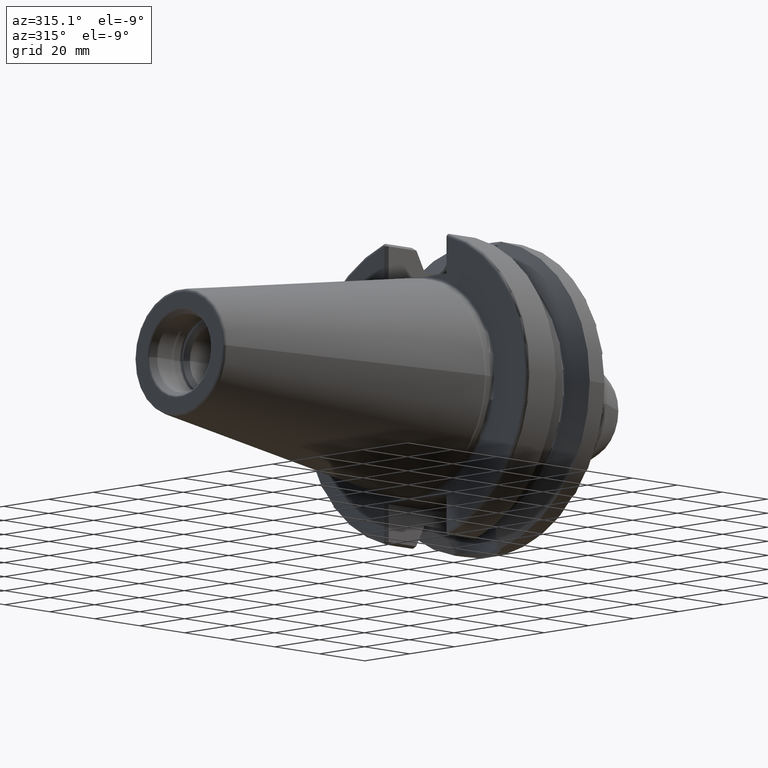
[diagram: clean part render]
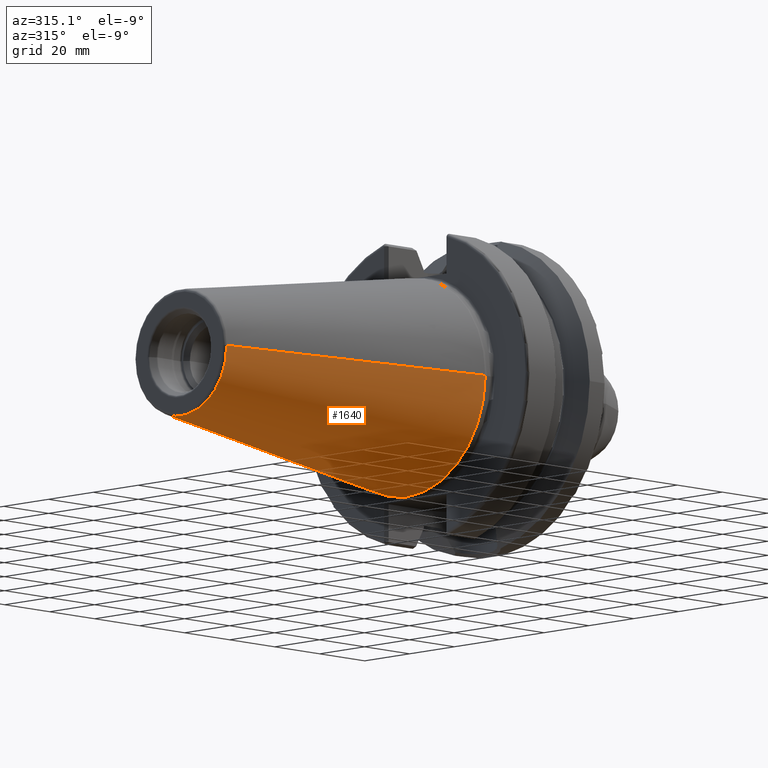
[diagram: same view with one face highlighted and labeled with its STEP entity id]
A machine part, auxiliary view. The second image highlights one B-rep face of the part: STEP entity #1640.
In plain terms, the highlighted conical surface has half-angle 8.298 deg.
Its self-contained STEP definition (entity closure, byte-faithful):
#32=CARTESIAN_POINT('',(-1.009443186692E2,0.E0,0.E0));
#33=DIRECTION('',(-1.E0,0.E0,0.E0));
#34=DIRECTION('',(0.E0,1.E0,0.E0));
#35=AXIS2_PLACEMENT_3D('',#32,#33,#34);
#47=DIRECTION('',(-9.895312636440E-1,-1.443186691705E-1,0.E0));
#48=VECTOR('',#47,1.013865167670E2);
#49=CARTESIAN_POINT('',(-6.191906162849E-1,3.483469384295E1,0.E0));
#50=LINE('',#49,#48);
#51=DIRECTION('',(-9.895312636440E-1,1.443186691705E-1,0.E0));
#52=VECTOR('',#51,1.013865167670E2);
#53=CARTESIAN_POINT('',(-6.191906162849E-1,-3.483469384295E1,0.E0));
#54=LINE('',#53,#52);
#55=CARTESIAN_POINT('',(-6.191906162850E-1,0.E0,0.E0));
#56=DIRECTION('',(-1.E0,0.E0,0.E0));
#57=DIRECTION('',(0.E0,1.E0,0.E0));
#58=AXIS2_PLACEMENT_3D('',#55,#56,#57);
#1304=CARTESIAN_POINT('',(-1.009443186692E2,2.020272667130E1,0.E0));
#1306=VERTEX_POINT('',#1304);
#1308=CARTESIAN_POINT('',(-1.009443186692E2,-2.020272667130E1,0.E0));
#1310=VERTEX_POINT('',#1308);
#1523=CARTESIAN_POINT('',(-6.191906162849E-1,3.483469384295E1,0.E0));
#1524=VERTEX_POINT('',#1523);
#1525=CARTESIAN_POINT('',(-6.191906162849E-1,-3.483469384295E1,0.E0));
#1526=VERTEX_POINT('',#1525);
#1628=CARTESIAN_POINT('',(-5.078175464273E1,0.E0,0.E0));
#1629=DIRECTION('',(1.E0,0.E0,0.E0));
#1630=DIRECTION('',(0.E0,-1.E0,0.E0));
#1631=AXIS2_PLACEMENT_3D('',#1628,#1629,#1630);
#1632=CONICAL_SURFACE('',#1631,2.751871025712E1,8.297826828206E0);
#1633=ORIENTED_EDGE('',*,*,#1618,.T.);
#1634=ORIENTED_EDGE('',*,*,#1595,.T.);
#1635=ORIENTED_EDGE('',*,*,#1622,.F.);
#1637=ORIENTED_EDGE('',*,*,#1636,.F.);
#1638=EDGE_LOOP('',(#1633,#1634,#1635,#1637));
#1639=FACE_OUTER_BOUND('',#1638,.F.);
#1640=ADVANCED_FACE('',(#1639),#1632,.T.);
#36=CIRCLE('',#35,2.020272667130E1);
#59=CIRCLE('',#58,3.483469384295E1);
#1595=EDGE_CURVE('',#1306,#1310,#36,.T.);
#1618=EDGE_CURVE('',#1524,#1306,#50,.T.);
#1622=EDGE_CURVE('',#1526,#1310,#54,.T.);
#1636=EDGE_CURVE('',#1524,#1526,#59,.T.);